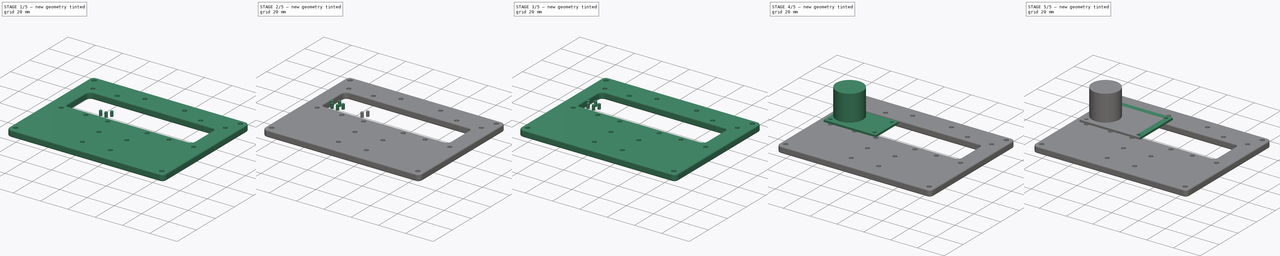
[diagram: build sequence overview — one tinted view per stage of 5, left to right]
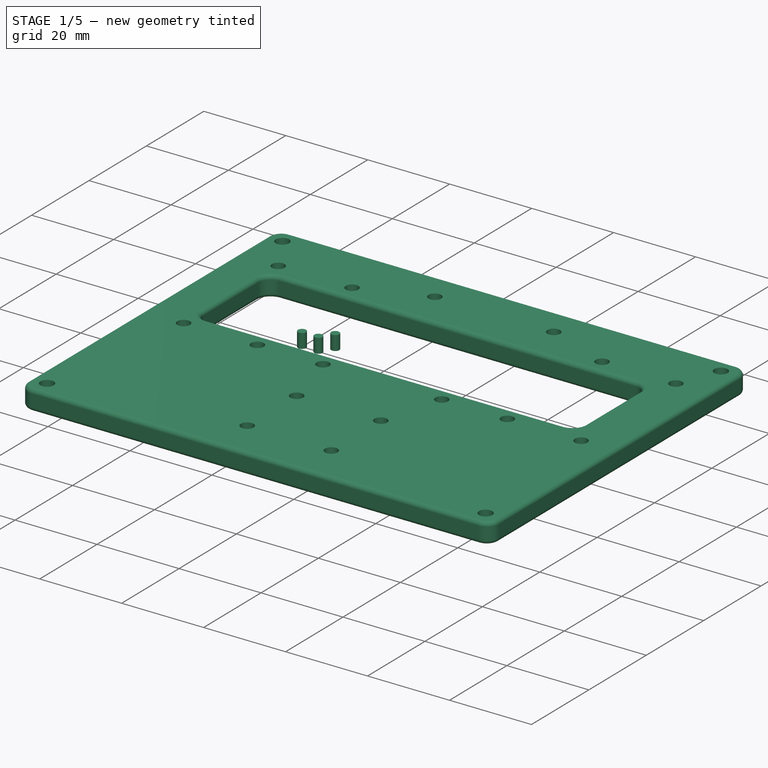
[diagram: stage 1 of 5 — iso view after this stage's code; geometry added in this stage tinted green]
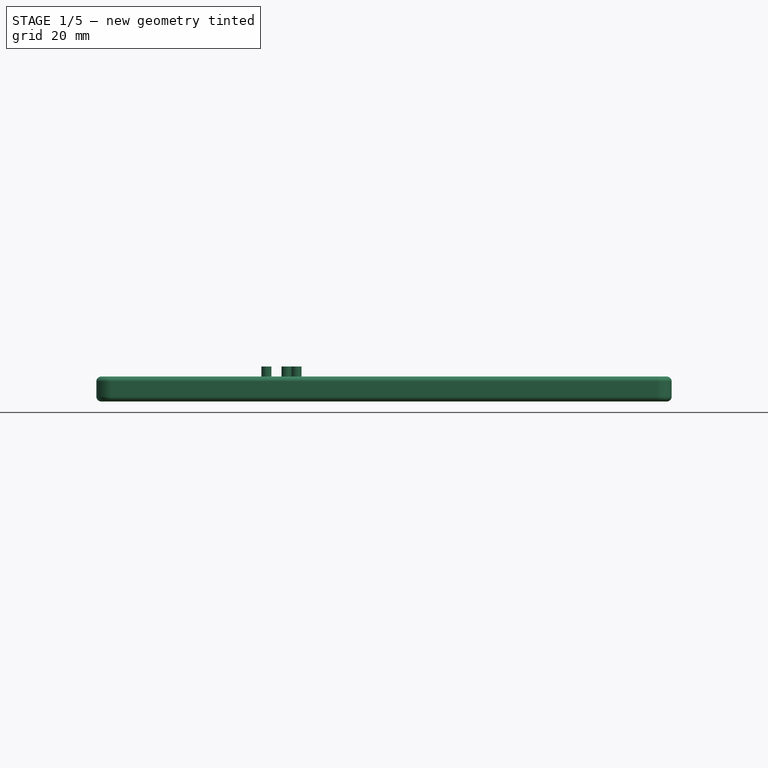
[diagram: stage 1 of 5 — front view after this stage's code; geometry added in this stage tinted green]
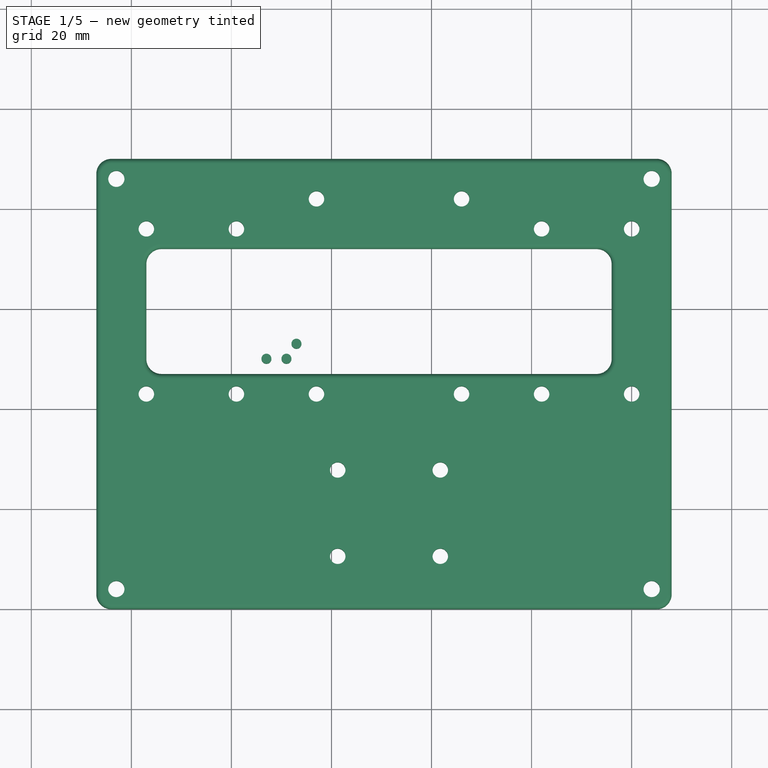
[diagram: stage 1 of 5 — top view after this stage's code; geometry added in this stage tinted green]
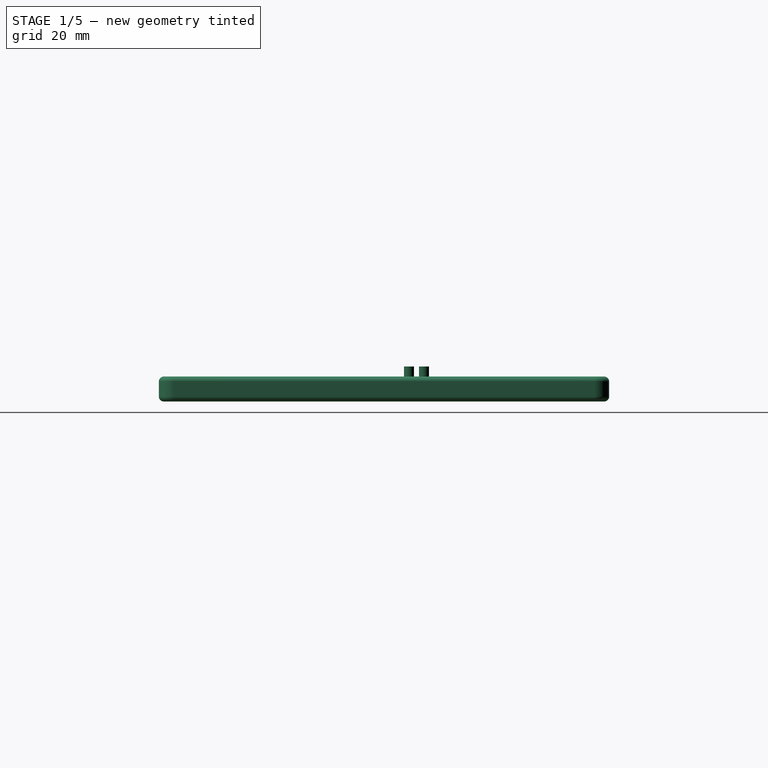
[diagram: stage 1 of 5 — right view after this stage's code; geometry added in this stage tinted green]
FCSTD DOCUMENT  (FreeCAD 1.0R39109 (Git))
Label: PCB_Mount
License: All rights reserved
LicenseURL: https://en.wikipedia.org/wiki/All_rights_reserved
objects: Part::Feature×36, App::Part×18, Part::Cylinder×16, Sketcher::SketchObject×4, Part::Extrusion×4, Part::MultiFuse×3, Part::Fillet×1
note: 68 computed .brp shape members not serialized (recipe doc carries the construction recipe); baked Part::Feature solids carry a one-line shape summary decoded from their .brp

FEATURE [Part::Cylinder] Cylinder002
  Angle = 360
  AttacherType = Attacher::AttachEngine3D
  FirstAngle = 0
  Height = 3.5
  Placement = pos=(27,10,-3.5) rot=(0,0,1;0rad)
  Radius = 1
  SecondAngle = 0
FEATURE [Part::Cylinder] Cylinder003
  Angle = 360
  AttacherType = Attacher::AttachEngine3D
  FirstAngle = 0
  Height = 3.5
  Placement = pos=(31,10,-3.5) rot=(0,0,1;0rad)
  Radius = 1
  SecondAngle = 0
FEATURE [Part::Cylinder] Cylinder004
  Angle = 360
  AttacherType = Attacher::AttachEngine3D
  FirstAngle = 0
  Height = 3.5
  Placement = pos=(33,13,-3.5) rot=(0,0,1;0rad)
  Radius = 1
  SecondAngle = 0
FEATURE [App::Part] Part  label="PCB1"
  Group = -> [Extrude,Sketch,Male_Pin_Header_6_Pin_v1,Cylinder,Cylinder002,Cylinder003,Cylinder004,Cylinder001,Fusion]
  Origin = -> Origin
  Placement = pos=(8.4e-15,39,0) rot=(0,0,1;4.71239rad)
FEATURE [Sketcher::SketchObject] Sketch003
  ArcFitTolerance = 1e-06
  FullyConstrained = true
  MakeInternals = false
  sketch-geometry (30):
    g0: LineSegment StartX=108 StartY=-7 StartZ=0 EndX=108 EndY=50 EndZ=0
    g1: LineSegment StartX=108 StartY=50 StartZ=0 EndX=-7 EndY=50 EndZ=0
    g2: LineSegment StartX=-7 StartY=50 StartZ=0 EndX=-7 EndY=-7 EndZ=0
    g3: LineSegment StartX=3 StartY=32 StartZ=0 EndX=3 EndY=7 EndZ=0
    g4: LineSegment StartX=3 StartY=7 StartZ=0 EndX=96 EndY=7 EndZ=0
    g5: LineSegment StartX=96 StartY=7 StartZ=0 EndX=96 EndY=32 EndZ=0
    g6: LineSegment StartX=96 StartY=32 StartZ=0 EndX=3 EndY=32 EndZ=0
    g7: Circle CenterX=3 CenterY=36 CenterZ=0 NormalX=0 NormalY=0 NormalZ=1 AngleXU=0 Radius=1.55
    g8: Circle CenterX=21 CenterY=36 CenterZ=0 NormalX=0 NormalY=0 NormalZ=1 AngleXU=0 Radius=1.55
    g9: Circle CenterX=3 CenterY=3 CenterZ=0 NormalX=0 NormalY=0 NormalZ=1 AngleXU=0 Radius=1.55
    g10: Circle CenterX=21 CenterY=3 CenterZ=0 NormalX=0 NormalY=0 NormalZ=1 AngleXU=0 Radius=1.55
    g11: Circle CenterX=82 CenterY=3 CenterZ=0 NormalX=0 NormalY=0 NormalZ=1 AngleXU=0 Radius=1.55
    g12: Circle CenterX=100 CenterY=3 CenterZ=0 NormalX=0 NormalY=0 NormalZ=1 AngleXU=0 Radius=1.55
    g13: Circle CenterX=82 CenterY=36 CenterZ=0 NormalX=0 NormalY=0 NormalZ=1 AngleXU=0 Radius=1.55
    g14: Circle CenterX=100 CenterY=36 CenterZ=0 NormalX=0 NormalY=0 NormalZ=1 AngleXU=0 Radius=1.55
    g15: Circle CenterX=37 CenterY=42 CenterZ=0 NormalX=0 NormalY=0 NormalZ=1 AngleXU=0 Radius=1.55
    g16: Circle CenterX=66 CenterY=42 CenterZ=0 NormalX=0 NormalY=0 NormalZ=1 AngleXU=0 Radius=1.55
    g17: Circle CenterX=66 CenterY=3 CenterZ=0 NormalX=0 NormalY=0 NormalZ=1 AngleXU=0 Radius=1.55
    g18: Circle CenterX=37 CenterY=3 CenterZ=0 NormalX=0 NormalY=0 NormalZ=1 AngleXU=0 Radius=1.55
    g19: Circle CenterX=-3 CenterY=46 CenterZ=0 NormalX=0 NormalY=0 NormalZ=1 AngleXU=0 Radius=1.625
    g20: Circle CenterX=-3 CenterY=-36 CenterZ=0 NormalX=0 NormalY=0 NormalZ=1 AngleXU=0 Radius=1.625
    g21: Circle CenterX=104 CenterY=46 CenterZ=0 NormalX=0 NormalY=0 NormalZ=1 AngleXU=0 Radius=1.625
    g22: Circle CenterX=104 CenterY=-36 CenterZ=0 NormalX=0 NormalY=0 NormalZ=1 AngleXU=0 Radius=1.625
    g23: LineSegment StartX=-7 StartY=-7 StartZ=0 EndX=-7 EndY=-40 EndZ=0
    g24: LineSegment StartX=-7 StartY=-40 StartZ=0 EndX=108 EndY=-40 EndZ=0
    g25: LineSegment StartX=108 StartY=-40 StartZ=0 EndX=108 EndY=-7 EndZ=0
    g26: Circle CenterX=41.25 CenterY=-12.2 CenterZ=0 NormalX=0 NormalY=0 NormalZ=1 AngleXU=0 Radius=1.55
    g27: Circle CenterX=41.25 CenterY=-29.45 CenterZ=0 NormalX=0 NormalY=0 NormalZ=1 AngleXU=0 Radius=1.55
    g28: Circle CenterX=61.75 CenterY=-12.2 CenterZ=0 NormalX=0 NormalY=0 NormalZ=1 AngleXU=0 Radius=1.55
    g29: Circle CenterX=61.75 CenterY=-29.45 CenterZ=0 NormalX=0 NormalY=0 NormalZ=1 AngleXU=0 Radius=1.55
  constraints (80):
    c: Coincident(g0,g1)
    c: Coincident(g1,g2)
    c: Horizontal(g1)
    c: Vertical(g0)
    c: Vertical(g2)
    c: Coincident(g3,g4)
    c: Coincident(g4,g5)
    c: Coincident(g5,g6)
    c: Coincident(g6,g3)
    c: Vertical(g3)
    c: Vertical(g5)
    c: Horizontal(g4)
    c: Horizontal(g6)
    c: DistanceX(g2,g0) = 115
    c: Distance(g2,g-1) = 7
    c: Distance(g2,g-2) = 7
    c: DistanceY(g3,g3) = 25
    c: DistanceX(g6,g6) = 93
    c: Distance(g3,g2) = 10
    c: Distance(g20,g2) = 4
    c: Distance(g19,g1) = 4
    c: Equal(g19,g20)
    c: Equal(g19,g21)
    c: Equal(g19,g22)
    c: Diameter(g19) = 3.25
    c: Horizontal(g19,g21)
    c: Horizontal(g20,g22)
    c: Vertical(g22,g21)
    c: Distance(g22,g0) = 4
    c: Vertical(g19,g20)
    c: Equal(g7, g8-g18) x11
    c: Diameter(g7) = 3.1
    c: Distance(g9,g2) = 10
    c: Distance(g7,g1) = 14
    c: Vertical(g9,g7)
    c: Horizontal(g7,g8)
    c: Horizontal(g9,g10)
    c: Distance(g10,g2) = 28
    c: Vertical(g10,g8)
    c: Horizontal(g10,g11)
    c: Horizontal(g11,g12)
    c: Horizontal(g12,g18)
    c: Horizontal(g18,g17)
    c: Distance(g11,g2) = 89
    c: Vertical(g11,g13)
    c: Horizontal(g8,g13)
    c: Horizontal(g13,g14)
    c: Distance(g12,g2) = 107
    c: Vertical(g12,g14)
    c: Distance(g18,g2) = 44
    c: Distance(g17,g0) = 42
    c: Vertical(g18,g15)
    c: Vertical(g17,g16)
    c: Distance(g15,g1) = 8
    c: Distance(g16,g1) = 8
    c: Coincident(g23,g2)
    c: Vertical(g23)
    c: Coincident(g24,g23)
    c: Horizontal(g24)
    c: Coincident(g25,g24)
    c: Coincident(g25,g0)
    c: Vertical(g25)
    c: Distance(g23,g-1) = 40
    c: Distance(g20,g24) = 4
    c: Distance(g3,g1) = 18
    c: Distance(g9,g-1) = 3
    c: DistanceY(g2,g2) = 57
    c: DistanceY(g25,g25) = 33
    c: Equal(g26,g27)
    c: Equal(g26,g28)
    c: Equal(g26,g29)
    c: Diameter(g26) = 3.1
    c: Distance(g27,g23) = 48.25
    c: Distance(g27,g24) = 10.55
    c: Vertical(g26,g27)
    c: DistanceY(g27,g26) = 17.25
    c: Horizontal(g27,g29)
    c: Distance(g29,g23) = 68.75
    c: Vertical(g29,g28)
    c: Horizontal(g26,g28)
FEATURE [Part::Extrusion] Extrude003
  Base = -> Sketch003
  Dir = (0,0,1)
  DirMode = 2
  FaceMakerClass = Part::FaceMakerBullseye
  FaceMakerMode = 3
  LengthFwd = 5
  LengthRev = 0
  Placement = pos=(0,0,-7) rot=(0,0,1;0rad)
  Solid = true
  Symmetric = false
FEATURE [Part::Feature] Part__Feature029  label="PLS-6 v1"
  Placement = pos=(6.74,1.5,-2.99438) rot=(-1,0,0;1.5708rad)
  shape: bbox 15.24 x 11.6 x 2.54 mm, 205 faces (baked)
FEATURE [Part::Feature] Part__Feature030  label="2445P Screw Terminal Block- 2 Pin, 3.5mm Pitch, Side Entry v1"
  Placement = pos=(12.5,1.5,-19.0086) rot=(0,1,0;3.14159rad)
  shape: bbox 2.7 x 4.45 x 3.8 mm, 19 faces (baked)
FEATURE [Part::Feature] Part__Feature031  label="2445P Screw Terminal Block- 2 Pin, 3.5mm Pitch, Side Entry v002"
  Placement = pos=(12.5,1.5,-19.0086) rot=(0,1,0;3.14159rad)
  shape: bbox 2.7 x 4.45 x 3.8 mm, 19 faces (baked)
FEATURE [Part::Feature] Part__Feature032  label="2445P Screw Terminal Block- 2 Pin, 3.5mm Pitch, Side Entry v003"
  Placement = pos=(12.5,1.5,-19.0086) rot=(0,1,0;3.14159rad)
  shape: bbox 2.815 x 4.401 x 2.815 mm, 12 faces (baked)
FEATURE [Part::Feature] Part__Feature033  label="2445P Screw Terminal Block- 2 Pin, 3.5mm Pitch, Side Entry v004"
  Placement = pos=(12.5,1.5,-19.0086) rot=(0,1,0;3.14159rad)
  shape: bbox 2.815 x 4.401 x 2.815 mm, 12 faces (baked)
FEATURE [Part::Feature] Part__Feature034  label="2445P Screw Terminal Block- 2 Pin, 3.5mm Pitch, Side Entry v005"
  Placement = pos=(12.5,1.5,-19.0086) rot=(0,1,0;3.14159rad)
  shape: bbox 7.801 x 8.401 x 6.801 mm, 128 faces (baked)
FEATURE [App::Part] _445P_Screw_Terminal_Block__2_Pin__3_5mm_Pitch__Side_Entry_v1  label="2445P Screw Terminal Block- 2 Pin, 3.5mm Pitch, Side Entry v006"
  Group = -> [Part__Feature030,Part__Feature031,Part__Feature032,Part__Feature033,Part__Feature034]
  Origin = -> Origin016
FEATURE [Part::Feature] Part__Feature035  label="SOLID"
  shape: bbox 25.3 x 2.5 x 22.3 mm, 73 faces (baked)
FEATURE [App::Part] INA_219_v1  label="INA-219 v1"
  Group = -> [Part__Feature029,_445P_Screw_Terminal_Block__2_Pin__3_5mm_Pitch__Side_Entry_v1,Part__Feature035]
  Origin = -> Origin017
  Placement = pos=(39,-32,-7.1e-15) rot=(1,0,0;1.5708rad)
FEATURE [Part::Fillet] Fillet
  Base = -> Extrude003
  EdgeLinks = -> Extrude003 [Edge2,Edge3,Edge4,Edge5,Edge6,Edge7,Edge9,Edge10,Edge11,Edge12,Edge13,Edge14,Edge15,Edge16,Edge17,Edge18,Edge19,Edge20,Edge21,Edge22,Edge23,Edge24,Edge25,Edge26,Edge27,Edge28,Edge29,Edge30]
  Edges = 28 edges: [Edge2 r=3,Edge3 r=1,Edge4 r=1,Edge5 r=3,Edge6 r=1,Edge7 r=1,Edge9 r=1,Edge10 r=1,Edge11 r=3,Edge12 r=1,Edge13 r=1,Edge14 r=3,Edge15 r=1,Edge16 r=1,Edge17 r=1,Edge18 r=1,Edge19 r=3,Edge20 r=3,Edge21 r=1,Edge22 r=1,Edge23 r=3,Edge24 r=1,Edge25 r=1,Edge26 r=3,Edge27 r=1,Edge28 r=1,Edge29 r=1,Edge30 r=1]
FEATURE [App::Part] Part003  label="Base"
  Group = -> [Sketch003,Extrude003,Fillet]
  Origin = -> Origin015
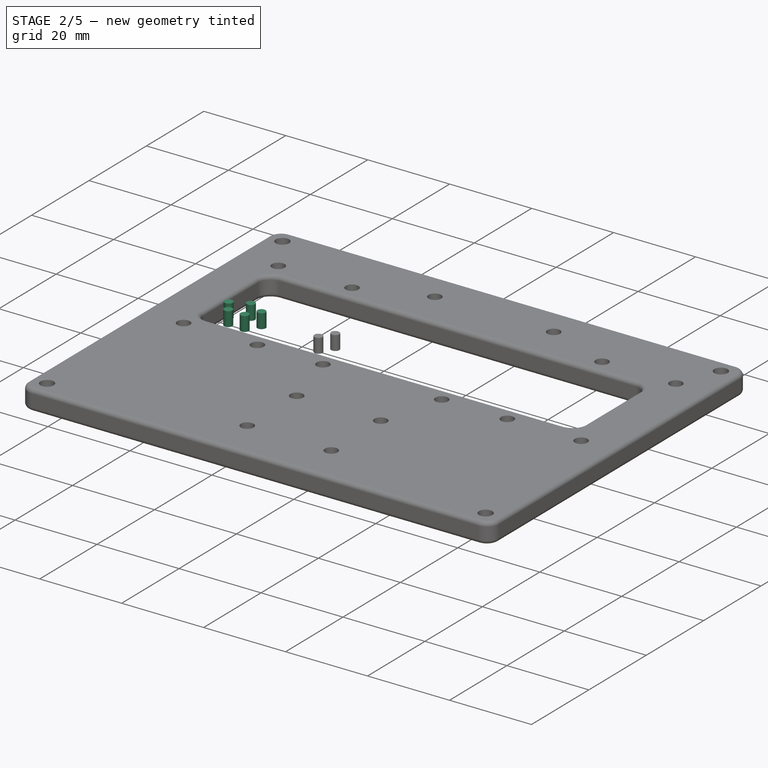
[diagram: stage 2 of 5 — iso view after this stage's code; geometry added in this stage tinted green]
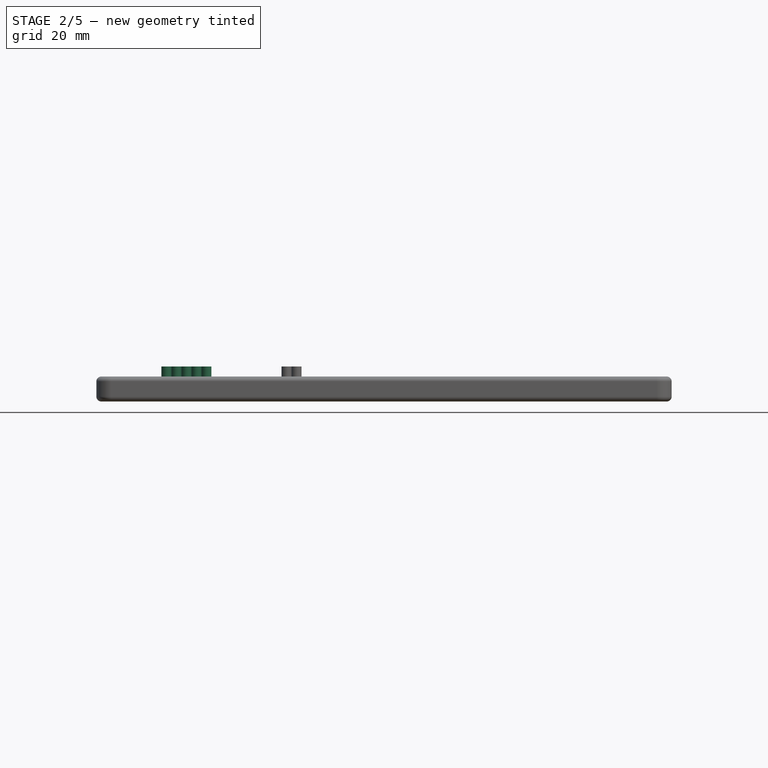
[diagram: stage 2 of 5 — front view after this stage's code; geometry added in this stage tinted green]
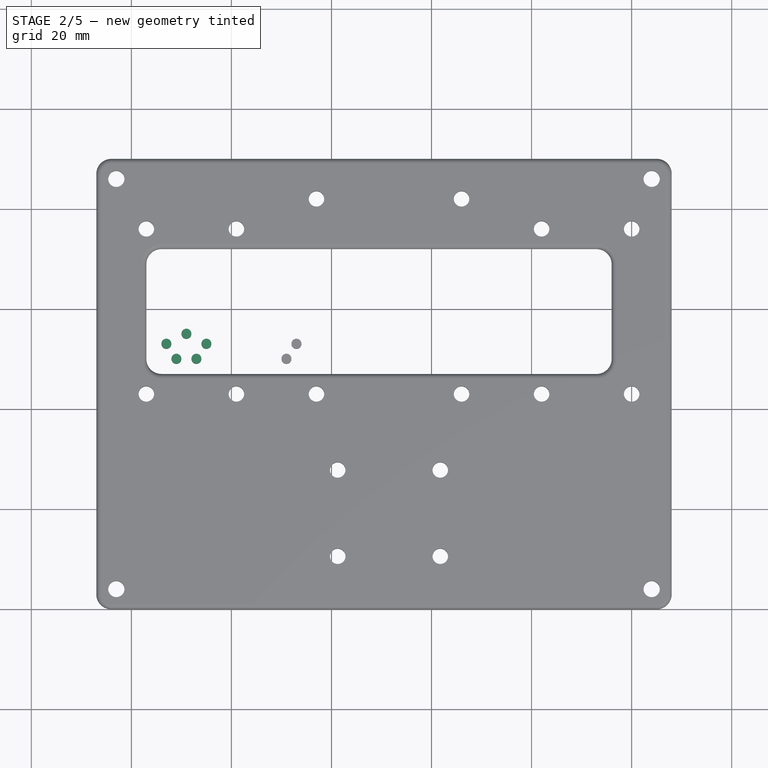
[diagram: stage 2 of 5 — top view after this stage's code; geometry added in this stage tinted green]
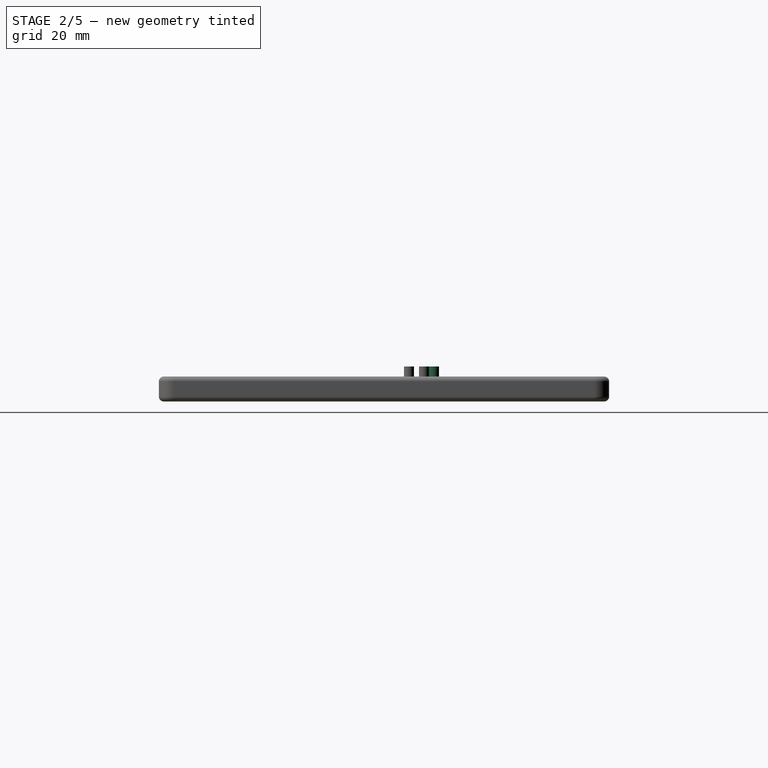
[diagram: stage 2 of 5 — right view after this stage's code; geometry added in this stage tinted green]
FEATURE [Part::Cylinder] Cylinder
  Angle = 360
  AttacherType = Attacher::AttachEngine3D
  FirstAngle = 0
  Height = 3.5
  Placement = pos=(29,15,-3.5) rot=(0,0,1;0rad)
  Radius = 1
  SecondAngle = 0
FEATURE [Part::Cylinder] Cylinder001
  Angle = 360
  AttacherType = Attacher::AttachEngine3D
  FirstAngle = 0
  Height = 3.5
  Placement = pos=(25,13,-3.5) rot=(0,0,1;0rad)
  Radius = 1
  SecondAngle = 0
FEATURE [Part::Cylinder] Cylinder013
  Angle = 360
  AttacherType = Attacher::AttachEngine3D
  FirstAngle = 0
  Height = 3.5
  Placement = pos=(31,10,-3.5) rot=(0,0,1;0rad)
  Radius = 1
  SecondAngle = 0
FEATURE [Part::Cylinder] Cylinder014
  Angle = 360
  AttacherType = Attacher::AttachEngine3D
  FirstAngle = 0
  Height = 3.5
  Placement = pos=(33,13,-3.5) rot=(0,0,1;0rad)
  Radius = 1
  SecondAngle = 0
FEATURE [App::Part] Part002  label="PCB3"
  Group = -> [Extrude002,Sketch002,Male_Pin_Header_6_Pin_v003,Cylinder015,Cylinder012,Cylinder013,Cylinder010,Cylinder011,Cylinder014,Fusion002]
  Origin = -> Origin012
  Placement = pos=(79,39,0) rot=(0,0,1;4.71239rad)
FEATURE [Part::MultiFuse] Fusion  label="UnderBAse"
  Placement = pos=(-18,0,0) rot=(0,0,1;0rad)
  Refine = true
  Shapes = -> [Cylinder,Cylinder002,Cylinder003,Cylinder004,Cylinder001]
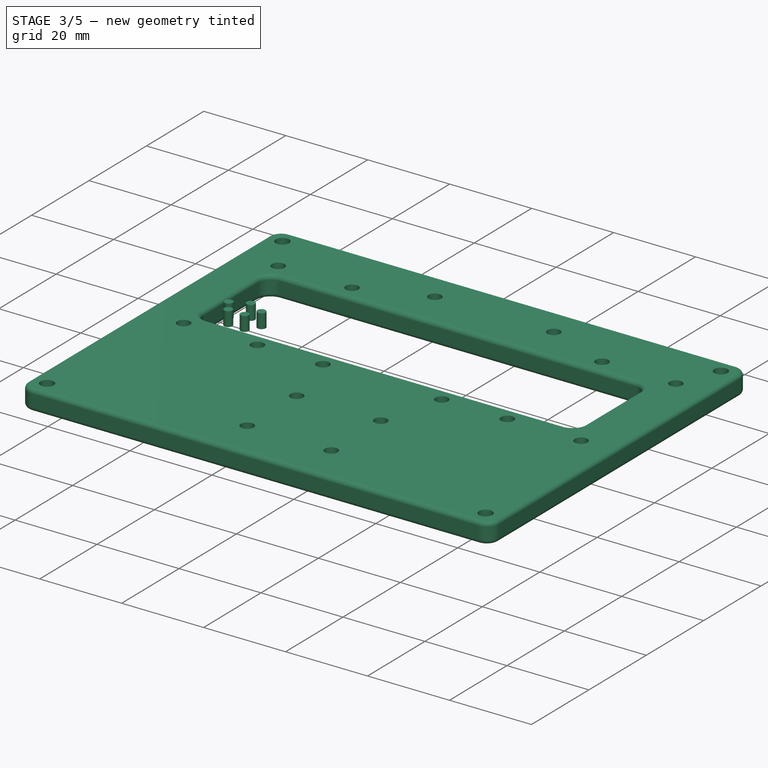
[diagram: stage 3 of 5 — iso view after this stage's code; geometry added in this stage tinted green]
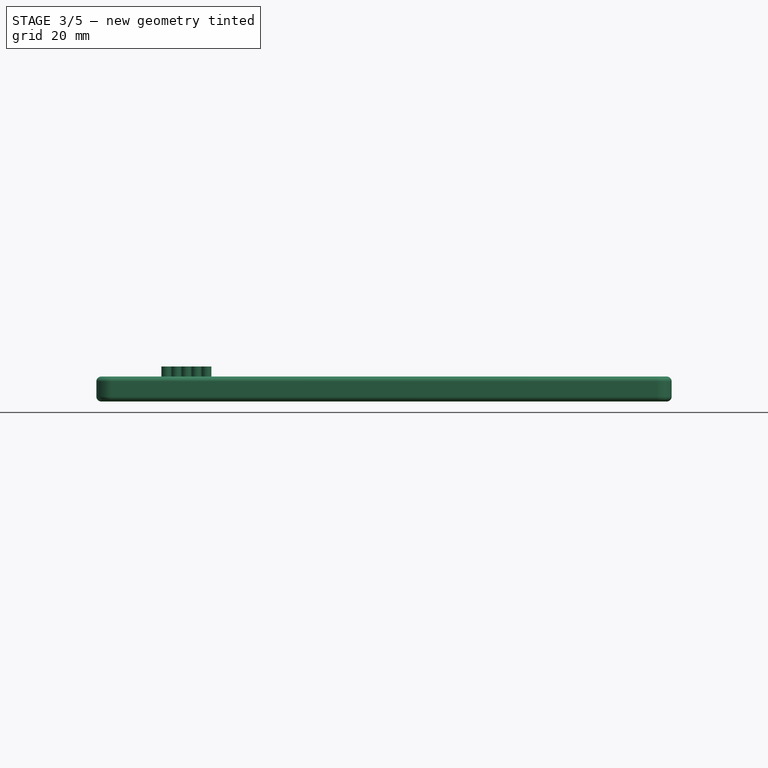
[diagram: stage 3 of 5 — front view after this stage's code; geometry added in this stage tinted green]
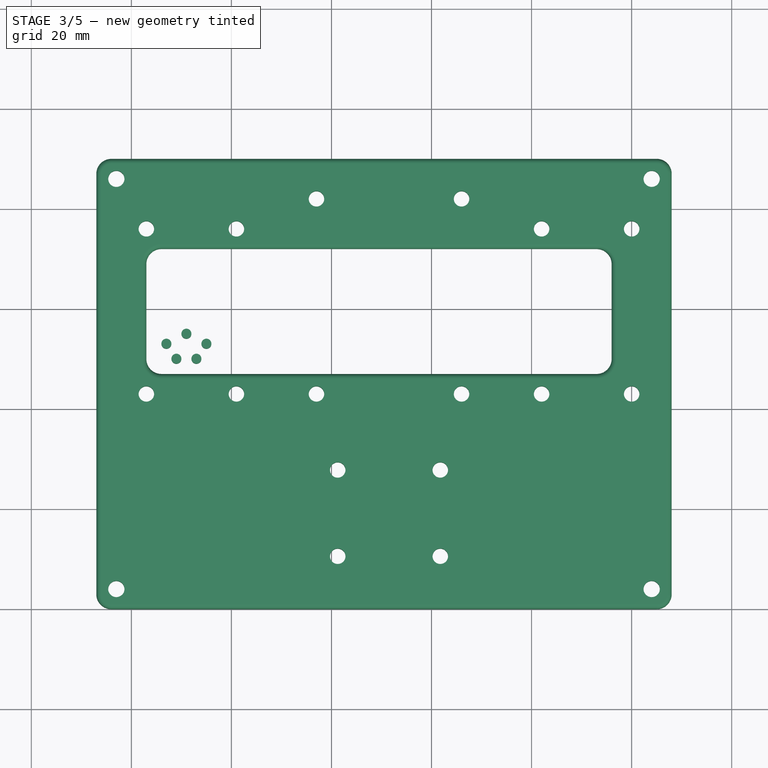
[diagram: stage 3 of 5 — top view after this stage's code; geometry added in this stage tinted green]
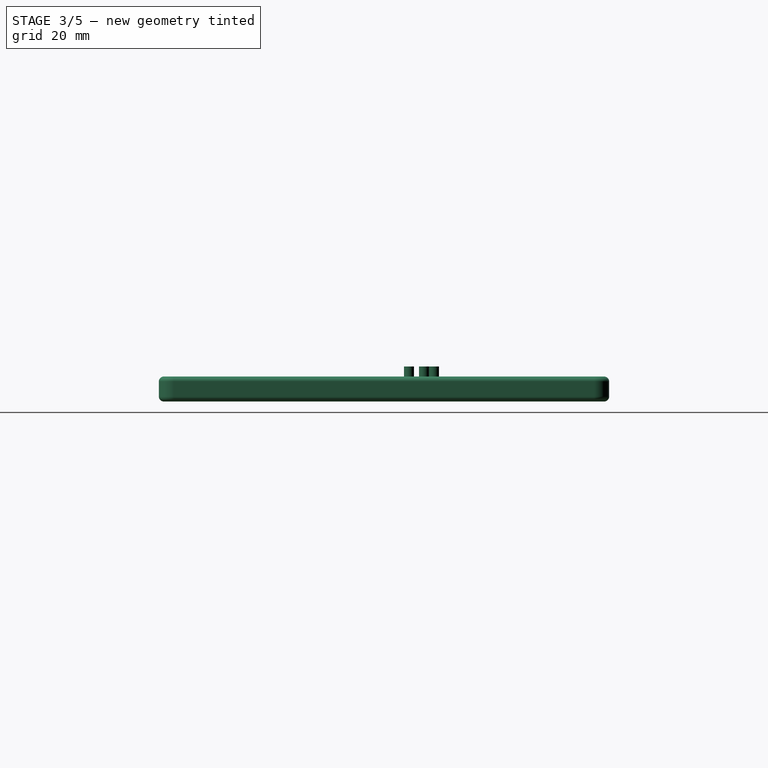
[diagram: stage 3 of 5 — right view after this stage's code; geometry added in this stage tinted green]
FEATURE [App::Part] Part001  label="PCB2"
  Group = -> [Extrude001,Sketch001,Male_Pin_Header_6_Pin_v002,Document,Document001,Cylinder008,Cylinder009,Cylinder005,Cylinder007,Cylinder006,Fusion001]
  Origin = -> Origin003
  Placement = pos=(34,45,0) rot=(0,0,1;4.71239rad)
FEATURE [Part::Cylinder] Cylinder010
  Angle = 360
  AttacherType = Attacher::AttachEngine3D
  FirstAngle = 0
  Height = 3.5
  Placement = pos=(29,15,-3.5) rot=(0,0,1;0rad)
  Radius = 1
  SecondAngle = 0
FEATURE [Part::Cylinder] Cylinder011
  Angle = 360
  AttacherType = Attacher::AttachEngine3D
  FirstAngle = 0
  Height = 3.5
  Placement = pos=(25,13,-3.5) rot=(0,0,1;0rad)
  Radius = 1
  SecondAngle = 0
FEATURE [Part::Cylinder] Cylinder012
  Angle = 360
  AttacherType = Attacher::AttachEngine3D
  FirstAngle = 0
  Height = 3.5
  Placement = pos=(27,10,-3.5) rot=(0,0,1;0rad)
  Radius = 1
  SecondAngle = 0
FEATURE [Part::MultiFuse] Fusion002  label="Under_base"
  Placement = pos=(-18,0,0) rot=(0,0,1;0rad)
  Refine = true
  Shapes = -> [Cylinder010,Cylinder012,Cylinder013,Cylinder014,Cylinder011]
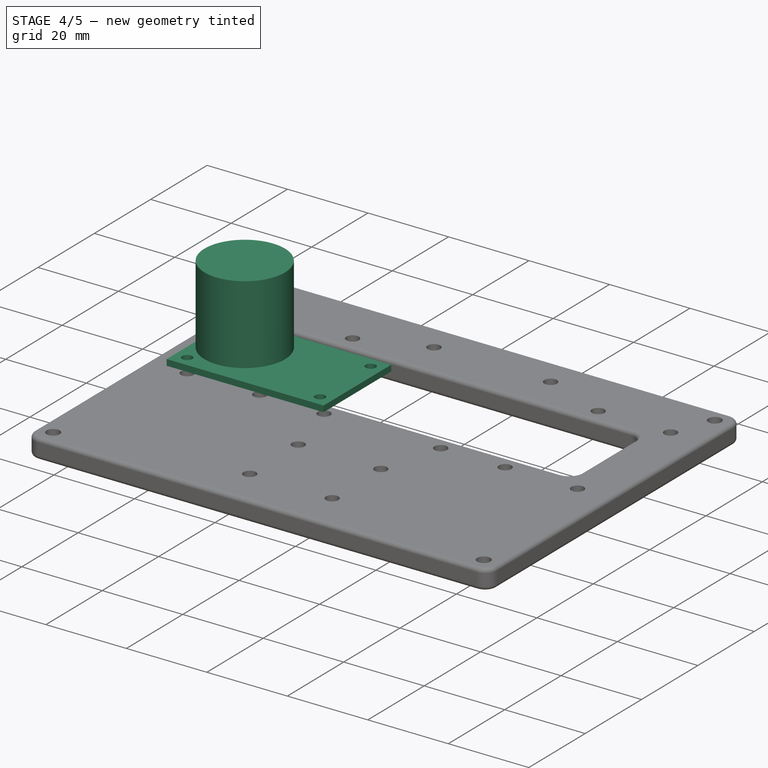
[diagram: stage 4 of 5 — iso view after this stage's code; geometry added in this stage tinted green]
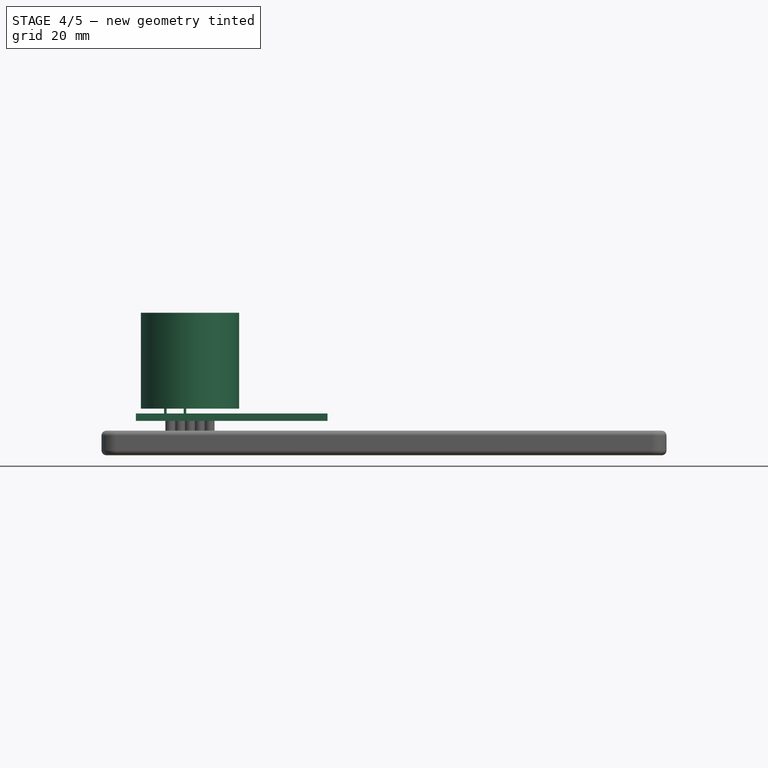
[diagram: stage 4 of 5 — front view after this stage's code; geometry added in this stage tinted green]
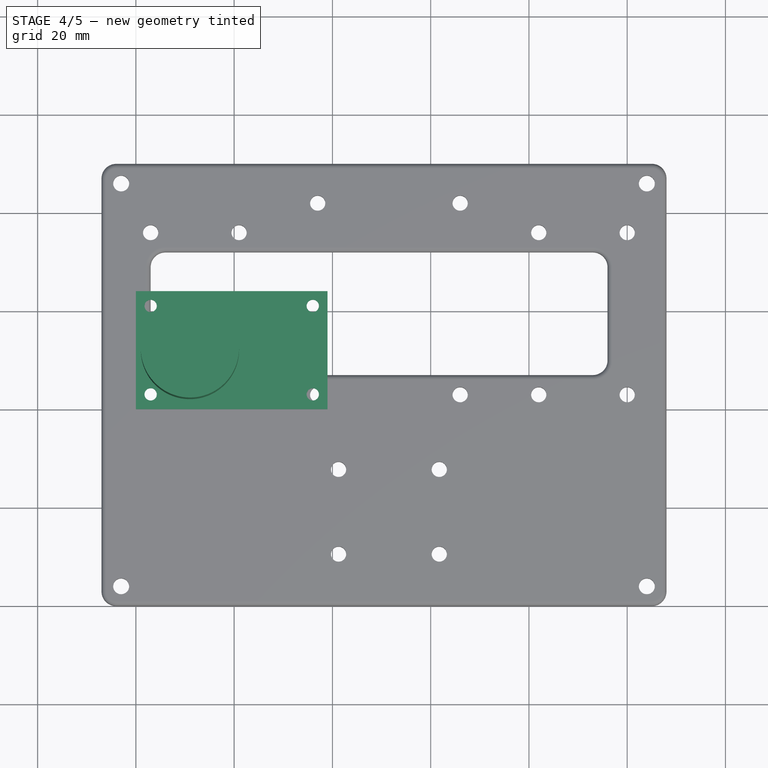
[diagram: stage 4 of 5 — top view after this stage's code; geometry added in this stage tinted green]
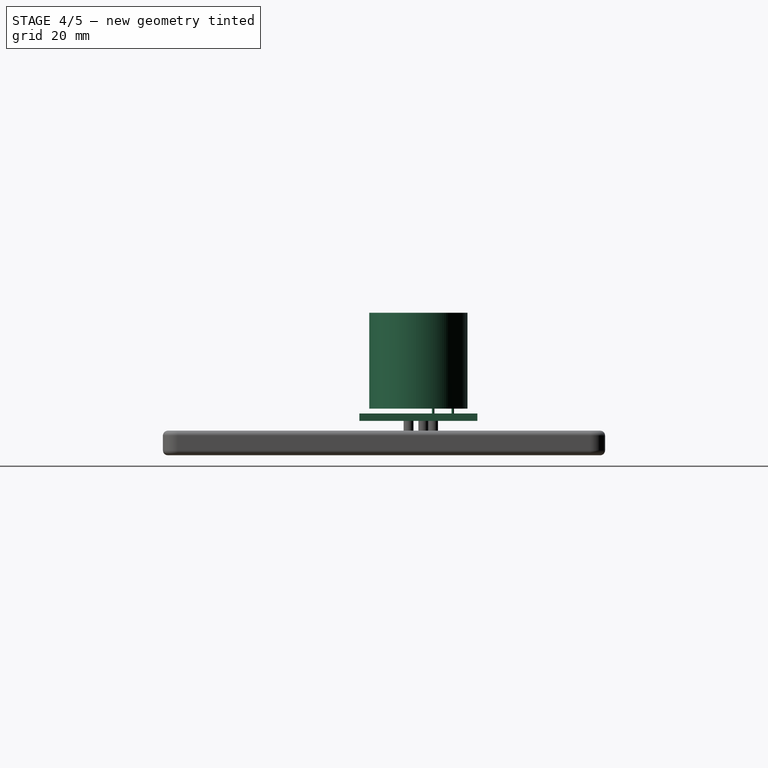
[diagram: stage 4 of 5 — right view after this stage's code; geometry added in this stage tinted green]
FEATURE [Part::Cylinder] Cylinder007
  Angle = 360
  AttacherType = Attacher::AttachEngine3D
  FirstAngle = 0
  Height = 8
  Placement = pos=(6,19,0) rot=(0,0,1;0rad)
  Radius = 0.25
  SecondAngle = 0
FEATURE [Part::Cylinder] Cylinder008
  Angle = 360
  AttacherType = Attacher::AttachEngine3D
  FirstAngle = 0
  Height = 8
  Placement = pos=(10,19,0) rot=(0,0,1;0rad)
  Radius = 0.25
  SecondAngle = 0
FEATURE [Part::Cylinder] Cylinder009
  Angle = 360
  AttacherType = Attacher::AttachEngine3D
  FirstAngle = 0
  Height = 8
  Placement = pos=(10,15,0) rot=(0,0,1;0rad)
  Radius = 0.25
  SecondAngle = 0
FEATURE [Part::Feature] Part__Feature022  label="Male Pin Header017"
  shape: bbox 1 x 1 x 11 mm, 14 faces (baked)
FEATURE [Part::Feature] Part__Feature023  label="Male Pin Header018"
  shape: bbox 7.5 x 5 x 2 mm, 28 faces (baked)
FEATURE [Part::Feature] Part__Feature024  label="Male Pin Header019"
  shape: bbox 1 x 1 x 11 mm, 14 faces (baked)
FEATURE [Part::Feature] Part__Feature025  label="Male Pin Header020"
  shape: bbox 1 x 1 x 11 mm, 14 faces (baked)
FEATURE [Part::Feature] Part__Feature026  label="Male Pin Header021"
  shape: bbox 1 x 1 x 11 mm, 14 faces (baked)
FEATURE [Part::Feature] Part__Feature027  label="Male Pin Header022"
  shape: bbox 1 x 1 x 11 mm, 14 faces (baked)
FEATURE [Part::Feature] Part__Feature028  label="Male Pin Header023"
  shape: bbox 1 x 1 x 11 mm, 14 faces (baked)
FEATURE [App::Part] Male_Pin_Header002  label="Male Pin Header016"
  Group = -> [Part__Feature022,Part__Feature023,Part__Feature024,Part__Feature025,Part__Feature026,Part__Feature027,Part__Feature028]
  Origin = -> Origin013
FEATURE [App::Part] Male_Pin_Header_6_Pin_v003  label="Male Pin Header 6 Pin v003"
  Group = -> [Male_Pin_Header002]
  Origin = -> Origin014
  Placement = pos=(28,15,-1) rot=(0,0,1;4.71239rad)
FEATURE [Sketcher::SketchObject] Sketch002
  ArcFitTolerance = 1e-06
  FullyConstrained = true
  MakeInternals = false
  sketch-geometry (8):
    g0: LineSegment StartX=0 StartY=0 StartZ=0 EndX=39 EndY=0 EndZ=0
    g1: LineSegment StartX=39 StartY=0 StartZ=0 EndX=39 EndY=24 EndZ=0
    g2: LineSegment StartX=39 StartY=24 StartZ=0 EndX=0 EndY=24 EndZ=0
    g3: LineSegment StartX=0 StartY=24 StartZ=0 EndX=0 EndY=0 EndZ=0
    g4: Circle CenterX=3 CenterY=3 CenterZ=0 NormalX=0 NormalY=0 NormalZ=1 AngleXU=0 Radius=1.25
    g5: Circle CenterX=3 CenterY=21 CenterZ=0 NormalX=0 NormalY=0 NormalZ=1 AngleXU=0 Radius=1.25
    g6: Circle CenterX=36 CenterY=21 CenterZ=0 NormalX=0 NormalY=0 NormalZ=1 AngleXU=0 Radius=1.25
    g7: Circle CenterX=36 CenterY=3 CenterZ=0 NormalX=0 NormalY=0 NormalZ=1 AngleXU=0 Radius=1.25
  constraints (23):
    c: Coincident(g0,g1)
    c: Coincident(g1,g2)
    c: Coincident(g2,g3)
    c: Coincident(g3,g0)
    c: Horizontal(g0)
    c: Horizontal(g2)
    c: Vertical(g1)
    c: Vertical(g3)
    c: Coincident(g0,g-1)
    c: DistanceY(g3,g3) = 24
    c: DistanceX(g0,g0) = 39
    c: Distance(g4,g0) = 3
    c: Distance(g4,g3) = 3
    c: Equal(g4,g5)
    c: Equal(g4,g6)
    c: Equal(g4,g7)
    c: Diameter(g4) = 2.5
    c: Distance(g7,g1) = 3
    c: Distance(g7,g0) = 3
    c: Distance(g5,g2) = 3
    c: Distance(g5,g3) = 3
    c: Distance(g6,g2) = 3
    c: Distance(g6,g1) = 3
FEATURE [Part::Extrusion] Extrude002  label="BasePlate002"
  Base = -> Sketch002
  Dir = (0,0,1)
  DirMode = 2
  FaceMakerClass = Part::FaceMakerBullseye
  FaceMakerMode = 3
  LengthFwd = 1.5
  LengthRev = 0
  Solid = true
  Symmetric = false
FEATURE [Part::Cylinder] Cylinder015
  Angle = 360
  AttacherType = Attacher::AttachEngine3D
  FirstAngle = 0
  Height = 19.5
  Placement = pos=(11,12,2.5) rot=(0,0,1;0rad)
  Radius = 10
  SecondAngle = 0
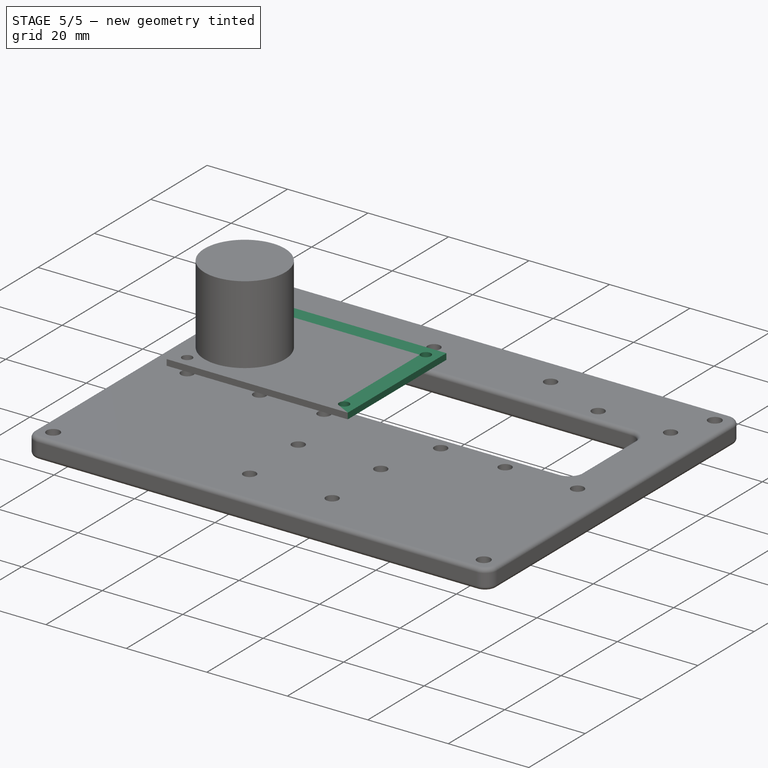
[diagram: stage 5 of 5 — iso view after this stage's code; geometry added in this stage tinted green]
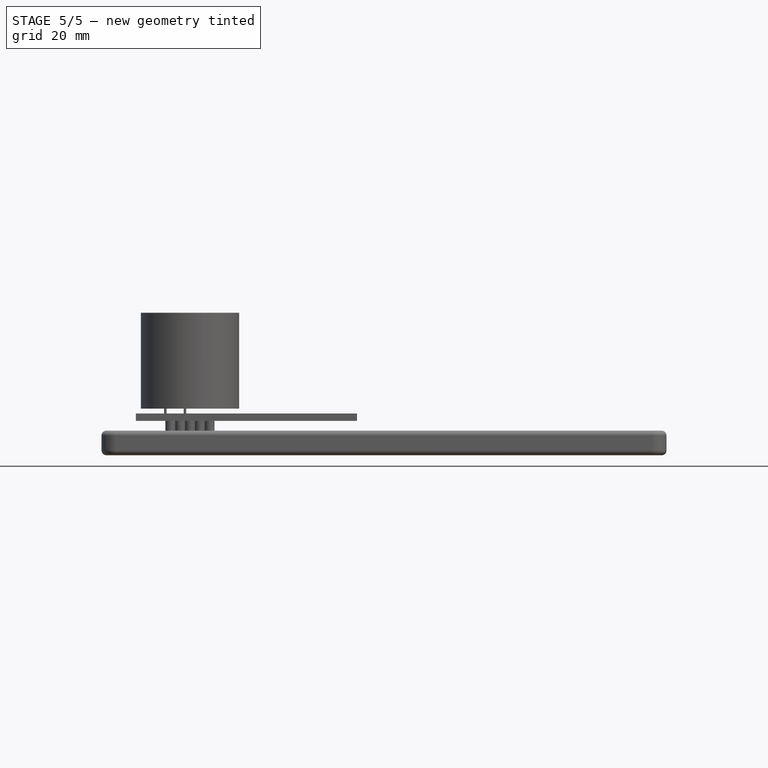
[diagram: stage 5 of 5 — front view after this stage's code; geometry added in this stage tinted green]
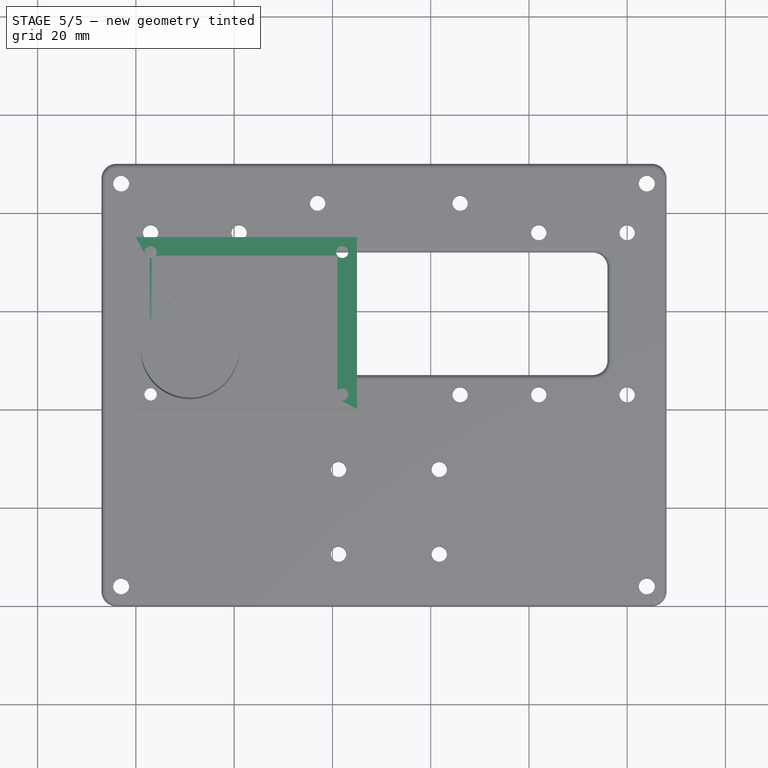
[diagram: stage 5 of 5 — top view after this stage's code; geometry added in this stage tinted green]
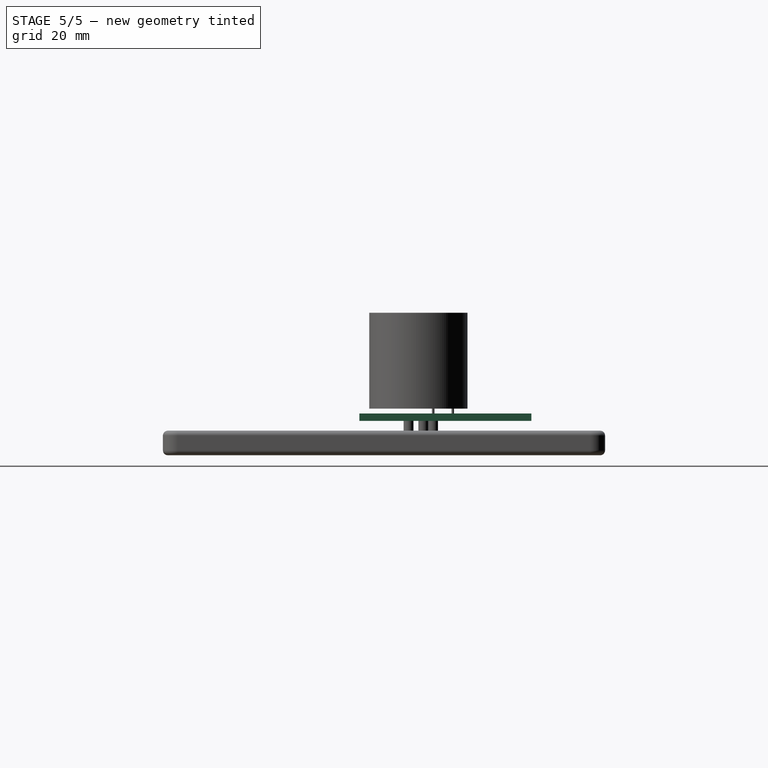
[diagram: stage 5 of 5 — right view after this stage's code; geometry added in this stage tinted green]
FEATURE [Sketcher::SketchObject] Sketch
  ArcFitTolerance = 1e-06
  FullyConstrained = true
  MakeInternals = false
  sketch-geometry (8):
    g0: LineSegment StartX=0 StartY=0 StartZ=0 EndX=39 EndY=0 EndZ=0
    g1: LineSegment StartX=39 StartY=0 StartZ=0 EndX=39 EndY=24 EndZ=0
    g2: LineSegment StartX=39 StartY=24 StartZ=0 EndX=0 EndY=24 EndZ=0
    g3: LineSegment StartX=0 StartY=24 StartZ=0 EndX=0 EndY=0 EndZ=0
    g4: Circle CenterX=3 CenterY=3 CenterZ=0 NormalX=0 NormalY=0 NormalZ=1 AngleXU=0 Radius=1.25
    g5: Circle CenterX=3 CenterY=21 CenterZ=0 NormalX=0 NormalY=0 NormalZ=1 AngleXU=0 Radius=1.25
    g6: Circle CenterX=36 CenterY=21 CenterZ=0 NormalX=0 NormalY=0 NormalZ=1 AngleXU=0 Radius=1.25
    g7: Circle CenterX=36 CenterY=3 CenterZ=0 NormalX=0 NormalY=0 NormalZ=1 AngleXU=0 Radius=1.25
  constraints (23):
    c: Coincident(g0,g1)
    c: Coincident(g1,g2)
    c: Coincident(g2,g3)
    c: Coincident(g3,g0)
    c: Horizontal(g0)
    c: Horizontal(g2)
    c: Vertical(g1)
    c: Vertical(g3)
    c: Coincident(g0,g-1)
    c: DistanceY(g3,g3) = 24
    c: DistanceX(g0,g0) = 39
    c: Distance(g4,g0) = 3
    c: Distance(g4,g3) = 3
    c: Equal(g4,g5)
    c: Equal(g4,g6)
    c: Equal(g4,g7)
    c: Diameter(g4) = 2.5
    c: Distance(g7,g1) = 3
    c: Distance(g7,g0) = 3
    c: Distance(g5,g2) = 3
    c: Distance(g5,g3) = 3
    c: Distance(g6,g2) = 3
    c: Distance(g6,g1) = 3
FEATURE [Part::Extrusion] Extrude  label="BasePlate"
  Base = -> Sketch
  Dir = (0,0,1)
  DirMode = 2
  FaceMakerClass = Part::FaceMakerBullseye
  FaceMakerMode = 3
  LengthFwd = 1.5
  LengthRev = 0
  Solid = true
  Symmetric = false
FEATURE [Part::Feature] Part__Feature  label="Male Pin Header"
  shape: bbox 1 x 1 x 11 mm, 14 faces (baked)
FEATURE [Part::Feature] Part__Feature001  label="Male Pin Header001"
  shape: bbox 7.5 x 5 x 2 mm, 28 faces (baked)
FEATURE [Part::Feature] Part__Feature002  label="Male Pin Header002"
  shape: bbox 1 x 1 x 11 mm, 14 faces (baked)
FEATURE [Part::Feature] Part__Feature003  label="Male Pin Header003"
  shape: bbox 1 x 1 x 11 mm, 14 faces (baked)
FEATURE [Part::Feature] Part__Feature004  label="Male Pin Header004"
  shape: bbox 1 x 1 x 11 mm, 14 faces (baked)
FEATURE [Part::Feature] Part__Feature005  label="Male Pin Header005"
  shape: bbox 1 x 1 x 11 mm, 14 faces (baked)
FEATURE [Part::Feature] Part__Feature006  label="Male Pin Header006"
  shape: bbox 1 x 1 x 11 mm, 14 faces (baked)
FEATURE [App::Part] Male_Pin_Header  label="Male Pin Header007"
  Group = -> [Part__Feature,Part__Feature001,Part__Feature002,Part__Feature003,Part__Feature004,Part__Feature005,Part__Feature006]
  Origin = -> Origin001
FEATURE [App::Part] Male_Pin_Header_6_Pin_v1  label="Male Pin Header 6 Pin v1"
  Group = -> [Male_Pin_Header]
  Origin = -> Origin002
  Placement = pos=(28,15,-1) rot=(0,0,1;4.71239rad)
FEATURE [Part::Feature] Part__Feature007  label="Male Pin Header009"
  shape: bbox 1 x 1 x 11 mm, 14 faces (baked)
FEATURE [Part::Feature] Part__Feature008  label="Male Pin Header010"
  shape: bbox 7.5 x 5 x 2 mm, 28 faces (baked)
FEATURE [Part::Feature] Part__Feature009  label="Male Pin Header011"
  shape: bbox 1 x 1 x 11 mm, 14 faces (baked)
FEATURE [Part::Feature] Part__Feature010  label="Male Pin Header012"
  shape: bbox 1 x 1 x 11 mm, 14 faces (baked)
FEATURE [Part::Feature] Part__Feature011  label="Male Pin Header013"
  shape: bbox 1 x 1 x 11 mm, 14 faces (baked)
FEATURE [Part::Feature] Part__Feature012  label="Male Pin Header014"
  shape: bbox 1 x 1 x 11 mm, 14 faces (baked)
FEATURE [Part::Feature] Part__Feature013  label="Male Pin Header015"
  shape: bbox 1 x 1 x 11 mm, 14 faces (baked)
FEATURE [App::Part] Male_Pin_Header001  label="Male Pin Header008"
  Group = -> [Part__Feature007,Part__Feature008,Part__Feature009,Part__Feature010,Part__Feature011,Part__Feature012,Part__Feature013]
  Origin = -> Origin004
FEATURE [App::Part] Male_Pin_Header_6_Pin_v002  label="Male Pin Header 6 Pin v002"
  Group = -> [Male_Pin_Header001]
  Origin = -> Origin005
  Placement = pos=(36,20,-2) rot=(0,0,1;4.71239rad)
FEATURE [Sketcher::SketchObject] Sketch001
  ArcFitTolerance = 1e-06
  FullyConstrained = true
  MakeInternals = false
  sketch-geometry (8):
    g0: LineSegment StartX=0 StartY=0 StartZ=0 EndX=45 EndY=0 EndZ=0
    g1: LineSegment StartX=45 StartY=0 StartZ=0 EndX=45 EndY=35 EndZ=0
    g2: LineSegment StartX=45 StartY=35 StartZ=0 EndX=0 EndY=35 EndZ=0
    g3: LineSegment StartX=0 StartY=35 StartZ=0 EndX=0 EndY=0 EndZ=0
    g4: Circle CenterX=3 CenterY=3 CenterZ=0 NormalX=0 NormalY=0 NormalZ=1 AngleXU=0 Radius=1.25
    g5: Circle CenterX=3 CenterY=32 CenterZ=0 NormalX=0 NormalY=0 NormalZ=1 AngleXU=0 Radius=1.25
    g6: Circle CenterX=42 CenterY=32 CenterZ=0 NormalX=0 NormalY=0 NormalZ=1 AngleXU=0 Radius=1.25
    g7: Circle CenterX=42 CenterY=3 CenterZ=0 NormalX=0 NormalY=0 NormalZ=1 AngleXU=0 Radius=1.25
  constraints (23):
    c: Coincident(g0,g1)
    c: Coincident(g1,g2)
    c: Coincident(g2,g3)
    c: Coincident(g3,g0)
    c: Horizontal(g0)
    c: Horizontal(g2)
    c: Vertical(g1)
    c: Vertical(g3)
    c: Coincident(g0,g-1)
    c: DistanceY(g3,g3) = 35
    c: DistanceX(g0,g0) = 45
    c: Distance(g4,g0) = 3
    c: Distance(g4,g3) = 3
    c: Equal(g4,g5)
    c: Equal(g4,g6)
    c: Equal(g4,g7)
    c: Diameter(g4) = 2.5
    c: Distance(g7,g1) = 3
    c: Distance(g7,g0) = 3
    c: Distance(g5,g2) = 3
    c: Distance(g5,g3) = 3
    c: Distance(g6,g2) = 3
    c: Distance(g6,g1) = 3
FEATURE [Part::Extrusion] Extrude001  label="BasePlate001"
  Base = -> Sketch001
  Dir = (0,0,1)
  DirMode = 2
  FaceMakerClass = Part::FaceMakerBullseye
  FaceMakerMode = 3
  LengthFwd = 1.5
  LengthRev = 0
  Solid = true
  Symmetric = false
FEATURE [Part::Feature] Part__Feature014  label="COMPOUND"
  shape: bbox 0.6505 x 0.63 x 12.7 mm, 14 faces (baked)
FEATURE [Part::Feature] Part__Feature015  label="COMPOUND001"
  shape: bbox 0.6505 x 0.63 x 12.7 mm, 14 faces (baked)
FEATURE [App::Part] COMPOUND  label="COMPOUND002"
  Group = -> [Part__Feature014,Part__Feature015]
  Origin = -> Origin006
FEATURE [Part::Feature] Part__Feature016  label="COMPOUND003"
  shape: bbox 3.704 x 2.554 x 2.812 mm, 23 faces, 0 solids (baked)
FEATURE [Part::Feature] Part__Feature017  label="COMPOUND004"
  shape: bbox 3.704 x 2.554 x 2.812 mm, 23 faces, 0 solids (baked)
FEATURE [App::Part] COMPOUND001  label="COMPOUND005"
  Group = -> [Part__Feature016,Part__Feature017]
  Origin = -> Origin007
FEATURE [App::Part] Document  label="Male Pin Header 2 Pin"
  Group = -> [COMPOUND,COMPOUND001]
  Origin = -> Origin008
  Placement = pos=(21,9,1) rot=(0,0,1;0rad)
FEATURE [Part::Feature] Part__Feature018  label="COMPOUND008"
  shape: bbox 0.6505 x 0.63 x 12.7 mm, 14 faces (baked)
FEATURE [Part::Feature] Part__Feature019  label="COMPOUND009"
  shape: bbox 0.6505 x 0.63 x 12.7 mm, 14 faces (baked)
FEATURE [App::Part] COMPOUND002  label="COMPOUND006"
  Group = -> [Part__Feature018,Part__Feature019]
  Origin = -> Origin009
FEATURE [Part::Feature] Part__Feature020  label="COMPOUND010"
  shape: bbox 3.704 x 2.554 x 2.812 mm, 23 faces, 0 solids (baked)
FEATURE [Part::Feature] Part__Feature021  label="COMPOUND011"
  shape: bbox 3.704 x 2.554 x 2.812 mm, 23 faces, 0 solids (baked)
FEATURE [App::Part] COMPOUND003  label="COMPOUND007"
  Group = -> [Part__Feature020,Part__Feature021]
  Origin = -> Origin010
FEATURE [App::Part] Document001  label="Male Pin Header 2 Pin001"
  Group = -> [COMPOUND002,COMPOUND003]
  Origin = -> Origin011
  Placement = pos=(21,25,1) rot=(0,0,1;0rad)
FEATURE [Part::Cylinder] Cylinder005
  Angle = 360
  AttacherType = Attacher::AttachEngine3D
  FirstAngle = 0
  Height = 8
  Placement = pos=(8,17,8) rot=(0,0,1;0rad)
  Radius = 4.5
  SecondAngle = 0
FEATURE [Part::Cylinder] Cylinder006
  Angle = 360
  AttacherType = Attacher::AttachEngine3D
  FirstAngle = 0
  Height = 8
  Placement = pos=(6,15,0) rot=(0,0,1;0rad)
  Radius = 0.25
  SecondAngle = 0
FEATURE [Part::MultiFuse] Fusion001  label="Capacitor"
  Refine = true
  Shapes = -> [Cylinder005,Cylinder006,Cylinder007,Cylinder008,Cylinder009]
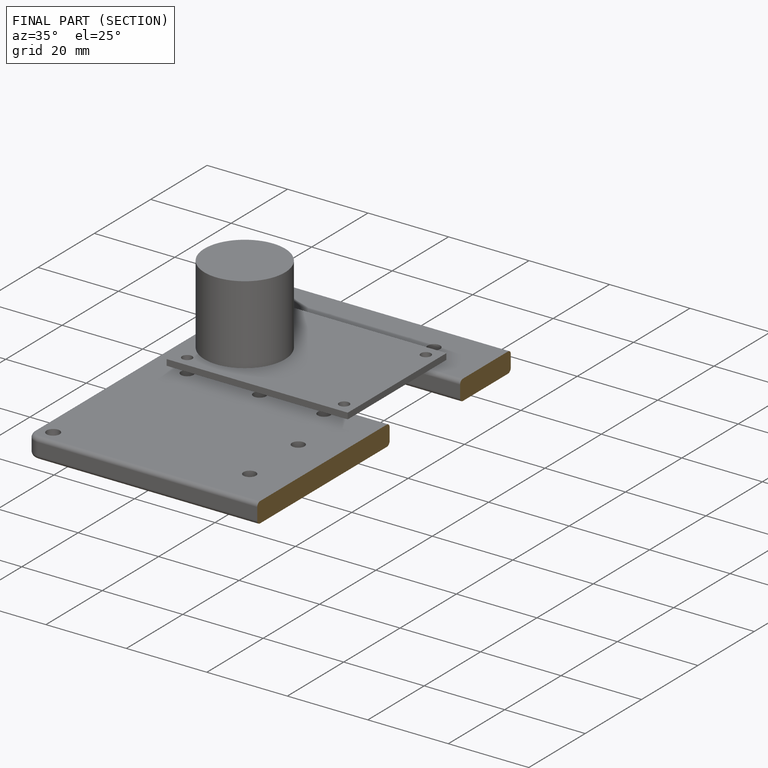
[diagram: finished part — half-section view (interior)]
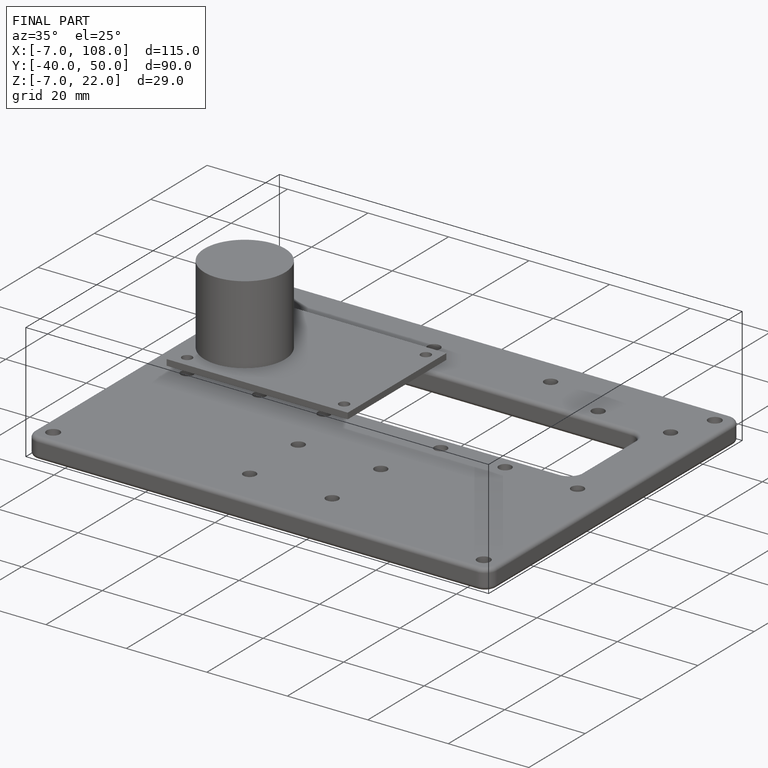
[diagram: finished part — iso view with bounding-box wireframe]
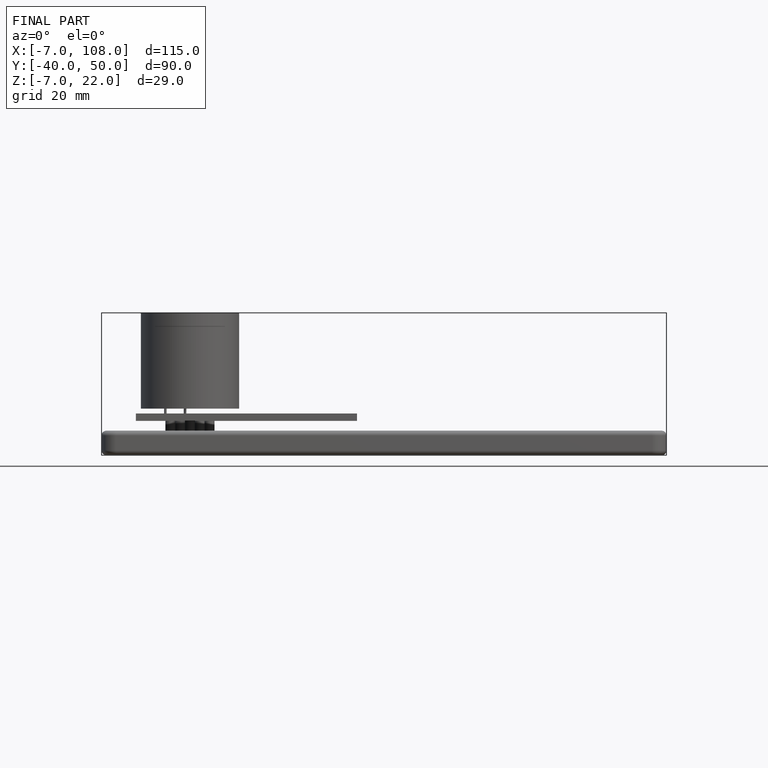
[diagram: finished part — front view with bounding-box wireframe]
